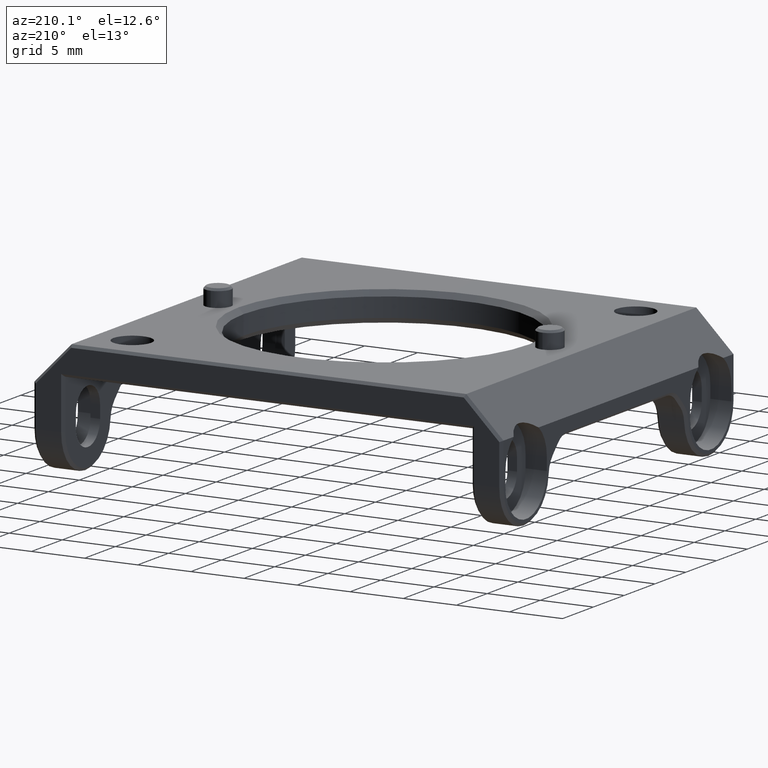
[diagram: clean part render]
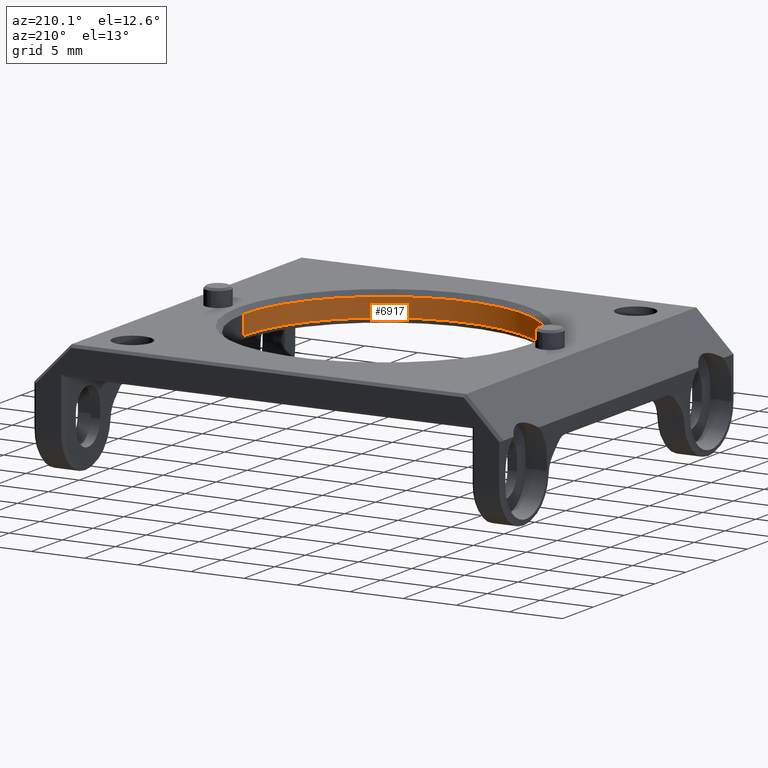
[diagram: same view with one face highlighted and labeled with its STEP entity id]
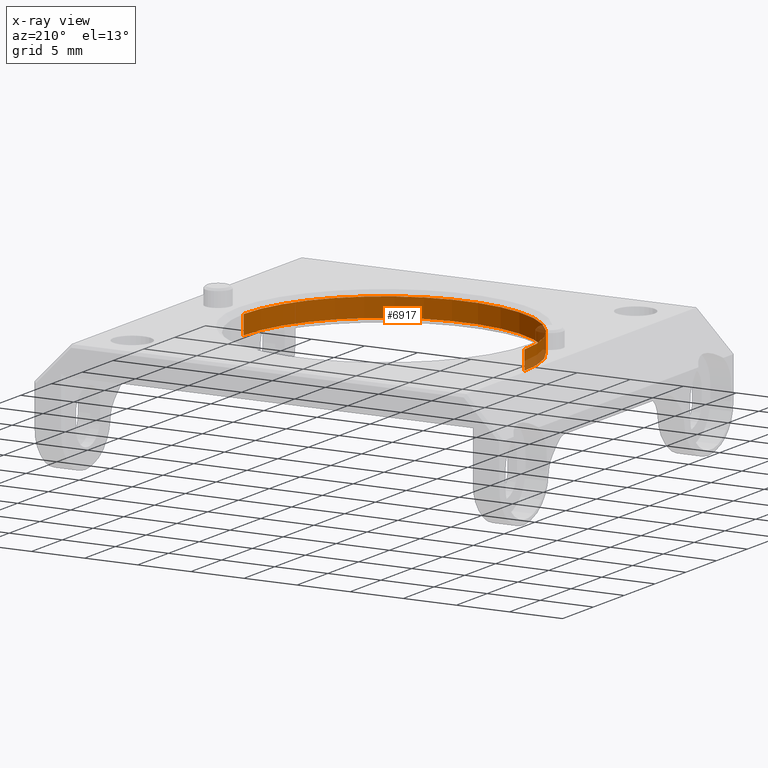
[diagram: x-ray of the same camera — body ghosted, the highlighted face saturated]
A machine part, auxiliary view. The second image highlights one B-rep face of the part: STEP entity #6917.
The next image is the same camera in x-ray: the body ghosted, the highlighted face saturated — about 6% of this face is hidden behind the body in this view.
In plain terms, the highlighted cylindrical surface (partial cylindrical patch) has radius 13.21 mm, axis along (-0, -0, -1).
Its self-contained STEP definition (entity closure, byte-faithful):
#71 = CYLINDRICAL_SURFACE ( 'NONE', #3510, 13.21000000000000085 ) ;
#144 = AXIS2_PLACEMENT_3D ( 'NONE', #1330, #4292, #6600 ) ;
#261 = EDGE_CURVE ( 'NONE', #4686, #778, #1133, .T. ) ;
#488 = DIRECTION ( 'NONE',  ( -1.000000000000000000, 0.000000000000000000, 0.000000000000000000 ) ) ;
#494 = CARTESIAN_POINT ( 'NONE',  ( 0.000000000000000000, 0.000000000000000000, 2.790000000000007585 ) ) ;
#778 = VERTEX_POINT ( 'NONE', #3658 ) ;
#935 = EDGE_CURVE ( 'NONE', #6797, #3521, #5886, .T. ) ;
#1044 = DIRECTION ( 'NONE',  ( -0.000000000000000000, -0.000000000000000000, 1.000000000000000000 ) ) ;
#1133 = CIRCLE ( 'NONE', #144, 13.21000000000000085 ) ;
#1330 = CARTESIAN_POINT ( 'NONE',  ( 0.000000000000000000, 0.000000000000000000, 0.5000000000000061062 ) ) ;
#1911 = CARTESIAN_POINT ( 'NONE',  ( 13.21000000000000085, 1.617758421673653776E-15, 2.790000000000007585 ) ) ;
#2596 = ORIENTED_EDGE ( 'NONE', *, *, #4714, .T. ) ;
#3013 = CARTESIAN_POINT ( 'NONE',  ( 13.21000000000000085, 1.648374591652337366E-15, 0.5000000000000061062 ) ) ;
#3041 = DIRECTION ( 'NONE',  ( -0.000000000000000000, -0.000000000000000000, -1.000000000000000000 ) ) ;
#3184 = FACE_OUTER_BOUND ( 'NONE', #4142, .T. ) ;
#3510 = AXIS2_PLACEMENT_3D ( 'NONE', #494, #5647, #7383 ) ;
#3515 = ORIENTED_EDGE ( 'NONE', *, *, #935, .T. ) ;
#3521 = VERTEX_POINT ( 'NONE', #6269 ) ;
#3658 = CARTESIAN_POINT ( 'NONE',  ( -13.21000000000000085, 0.000000000000000000, 0.5000000000000061062 ) ) ;
#3918 = CARTESIAN_POINT ( 'NONE',  ( 0.000000000000000000, 0.000000000000000000, 2.290000000000004032 ) ) ;
#4142 = EDGE_LOOP ( 'NONE', ( #3515, #2596, #4304, #4362 ) ) ;
#4150 = LINE ( 'NONE', #1911, #6405 ) ;
#4155 = VECTOR ( 'NONE', #5497, 1000.000000000000000 ) ;
#4292 = DIRECTION ( 'NONE',  ( 0.000000000000000000, 0.000000000000000000, -1.000000000000000000 ) ) ;
#4304 = ORIENTED_EDGE ( 'NONE', *, *, #261, .T. ) ;
#4328 = LINE ( 'NONE', #6048, #4155 ) ;
#4362 = ORIENTED_EDGE ( 'NONE', *, *, #4630, .F. ) ;
#4418 = CARTESIAN_POINT ( 'NONE',  ( -13.21000000000000085, 0.000000000000000000, 2.290000000000004032 ) ) ;
#4630 = EDGE_CURVE ( 'NONE', #6797, #778, #4328, .T. ) ;
#4686 = VERTEX_POINT ( 'NONE', #3013 ) ;
#4714 = EDGE_CURVE ( 'NONE', #3521, #4686, #4150, .T. ) ;
#5497 = DIRECTION ( 'NONE',  ( -0.000000000000000000, -0.000000000000000000, -1.000000000000000000 ) ) ;
#5647 = DIRECTION ( 'NONE',  ( -0.000000000000000000, -0.000000000000000000, -1.000000000000000000 ) ) ;
#5886 = CIRCLE ( 'NONE', #7010, 13.21000000000000085 ) ;
#6048 = CARTESIAN_POINT ( 'NONE',  ( -13.21000000000000085, 0.000000000000000000, 2.790000000000007585 ) ) ;
#6269 = CARTESIAN_POINT ( 'NONE',  ( 13.21000000000000085, 1.617758421673653776E-15, 2.290000000000004032 ) ) ;
#6405 = VECTOR ( 'NONE', #3041, 1000.000000000000000 ) ;
#6600 = DIRECTION ( 'NONE',  ( 1.000000000000000000, 0.000000000000000000, 0.000000000000000000 ) ) ;
#6797 = VERTEX_POINT ( 'NONE', #4418 ) ;
#6917 = ADVANCED_FACE ( 'NONE', ( #3184 ), #71, .F. ) ;
#7010 = AXIS2_PLACEMENT_3D ( 'NONE', #3918, #1044, #488 ) ;
#7383 = DIRECTION ( 'NONE',  ( -1.000000000000000000, 0.000000000000000000, 0.000000000000000000 ) ) ;